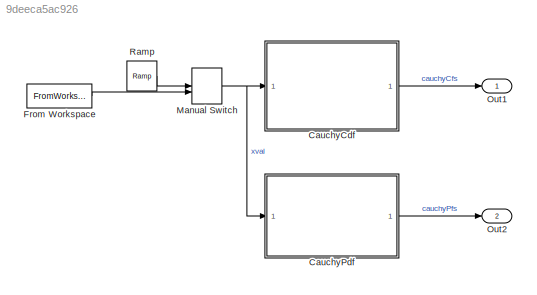
MODEL slx_9deeca5ac926
KIND model
CONFIG AbsTol = auto
CONFIG EnableMultiTasking = off
CONFIG FixedStep = auto
CONFIG MaxStep = auto
CONFIG MinStep = auto
CONFIG RelTol = 1e-3
CONFIG SampleTimeConstraint = Unconstrained
CONFIG SolverName = VariableStepAuto
CONFIG StartTime = 0.0
CONFIG StopTime = 10
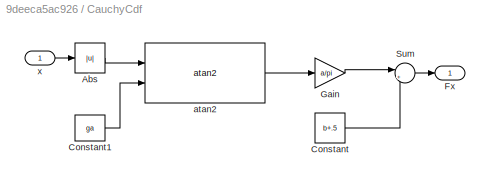
BLOCK [SubSystem] CauchyCdf
  Ports = [1, 1]
  RequestExecContextInheritance = off
BLOCK [Abs] CauchyCdf/Abs
  SaturateOnIntegerOverflow = off
BLOCK [Constant] CauchyCdf/Constant
  Value = b+.5
BLOCK [Constant] CauchyCdf/Constant1
  Value = ga
BLOCK [Outport] CauchyCdf/Fx
BLOCK [Gain] CauchyCdf/Gain
  Gain = a/pi
BLOCK [Sum] CauchyCdf/Sum
  Inputs = |++
  Ports = [2, 1]
BLOCK [Reference] CauchyCdf/atan2  REF=mcbcontrolslib/atan2
  Ports = [2, 1]
  SourceBlock = mcbcontrolslib/atan2
  SourceProductBaseCode = MT
  SourceType = atan2
BLOCK [Inport] CauchyCdf/x
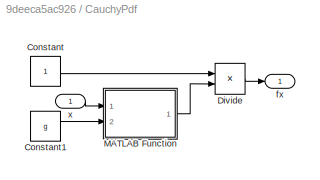
BLOCK [SubSystem] CauchyPdf
  Ports = [1, 1]
  RequestExecContextInheritance = off
BLOCK [Constant] CauchyPdf/Constant
BLOCK [Constant] CauchyPdf/Constant1
  Value = g
BLOCK [Product] CauchyPdf/Divide
  Inputs = */
  Ports = [2, 1]
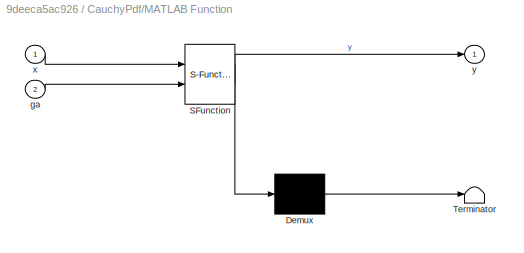
BLOCK [SubSystem] CauchyPdf/MATLAB Function
  ErrorFcn = Stateflow.Translate.translate
  PermitHierarchicalResolution = ExplicitOnly
  Ports = [2, 1]
  RequestExecContextInheritance = off
  SFBlockType = MATLAB Function
  TreatAsAtomicUnit = on
BLOCK [Demux] CauchyPdf/MATLAB Function/ Demux 
  Outputs = 1
  Ports = [1, 1]
BLOCK [S-Function] CauchyPdf/MATLAB Function/ SFunction 
  EnableBusSupport = on
  FunctionName = sf_sfun
  PortCounts = [2 2]
  Ports = [2, 2]
  SFcnIsStateOwnerBlock = off
  SFunctionDeploymentMode = off
  Tag = Stateflow S-Function 2
BLOCK [Terminator] CauchyPdf/MATLAB Function/ Terminator 
BLOCK [Inport] CauchyPdf/MATLAB Function/ga
  Port = 2
BLOCK [Inport] CauchyPdf/MATLAB Function/x
BLOCK [Outport] CauchyPdf/MATLAB Function/y
BLOCK [Outport] CauchyPdf/fx
BLOCK [Inport] CauchyPdf/x
BLOCK [FromWorkspace] From Workspace
  VariableName = xList
BLOCK [ManualSwitch] Manual Switch
  CurrentSetting = 0
BLOCK [Outport] Out1
BLOCK [Outport] Out2
  Port = 2
BLOCK [Reference] Ramp  REF=simulink/Sources/Ramp
  Ports = [0, 1]
  SourceBlock = simulink/Sources/Ramp
  SourceProductBaseCode = SL
  SourceType = Ramp
LINE CauchyCdf/Abs:1 -> CauchyCdf/atan2:1
LINE CauchyCdf/Constant1:1 -> CauchyCdf/atan2:2
LINE CauchyCdf/Constant:1 -> CauchyCdf/Sum:2
LINE CauchyCdf/Gain:1 -> CauchyCdf/Sum:1
LINE CauchyCdf/Sum:1 -> CauchyCdf/Fx:1
LINE CauchyCdf/atan2:1 -> CauchyCdf/Gain:1
LINE CauchyCdf/x:1 -> CauchyCdf/Abs:1
LINE CauchyCdf:1 -> Out1:1
LINE CauchyPdf/Constant1:1 -> CauchyPdf/MATLAB Function:2
LINE CauchyPdf/Constant:1 -> CauchyPdf/Divide:1
LINE CauchyPdf/Divide:1 -> CauchyPdf/fx:1
LINE CauchyPdf/MATLAB Function:1 -> CauchyPdf/Divide:2
LINE CauchyPdf/x:1 -> CauchyPdf/MATLAB Function:1
LINE CauchyPdf:1 -> Out2:1
LINE From Workspace:1 -> Manual Switch:2
NET Manual Switch:1 -> CauchyCdf:1, CauchyPdf:1
LINE Ramp:1 -> Manual Switch:1
note: NET lines group one-source signal fan-out (src -> all destinations, sorted); 1:1 wires keep LINE
CHART CauchyPdf/MATLAB Function states=1 transitions=1
  STATE_LABEL 'eML_blk_kernel()'
  STATE_LABEL 'SCRIPT:\nfunction y = fcn(x, ga)\ny = pi*(ga+x^2);\n'
CHART  states=0 transitions=0
